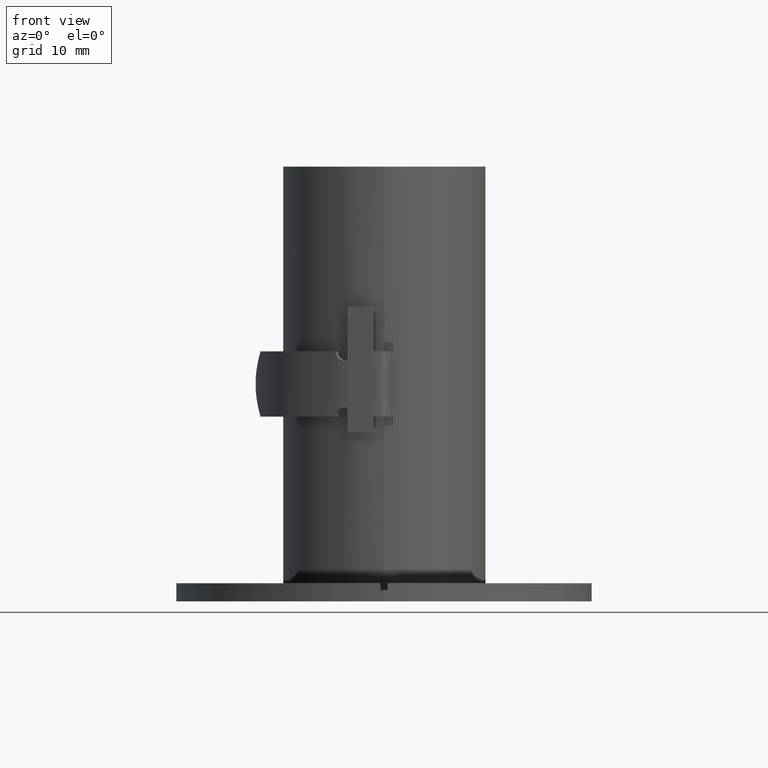
[diagram: clean part render]
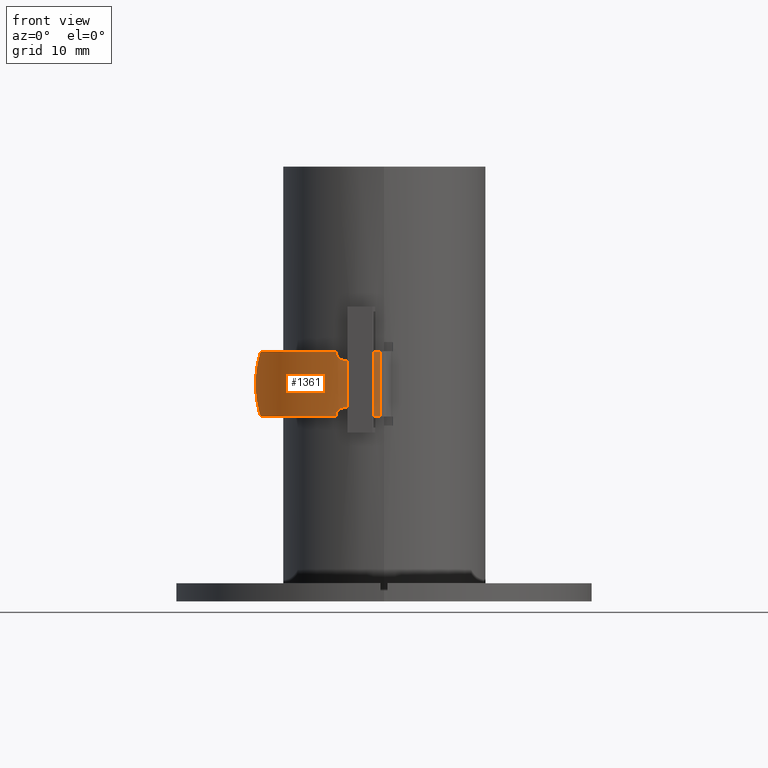
[diagram: same view with one face highlighted and labeled with its STEP entity id]
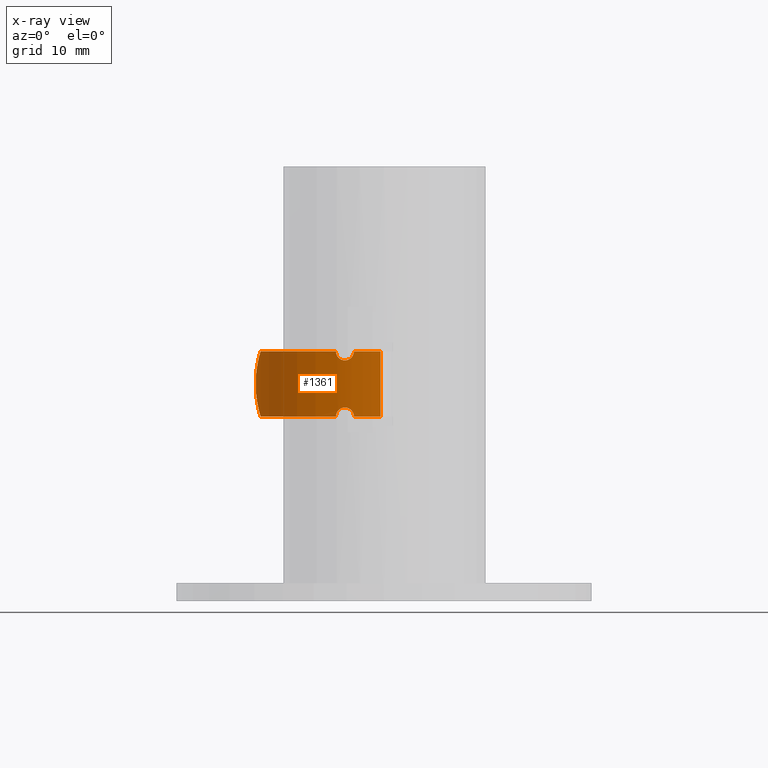
[diagram: x-ray of the same camera — body ghosted, the highlighted face saturated]
A machine part, front view. The second image highlights one B-rep face of the part: STEP entity #1361.
The next image is the same camera in x-ray: the body ghosted, the highlighted face saturated — about 0% of this face is hidden behind the body in this view.
In plain terms, the highlighted cylindrical surface (partial cylindrical patch) has radius 16.7 mm, axis along (-0, -0, -1).
Its self-contained STEP definition (entity closure, byte-faithful):
#1183=CARTESIAN_POINT('',(-17.041782629864549,-3.252078268301863,25.500000000000064));
#1184=VERTEX_POINT('',#1183);
#1185=CARTESIAN_POINT('',(-17.692212388384888,0.206895096313986,29.000000000000075));
#1186=VERTEX_POINT('',#1185);
#1187=CARTESIAN_POINT('',(-1.046021881535038,1.546425465384389,29.000000000000004));
#1188=DIRECTION('',(-0.056718024405692,0.704828394509981,-0.707106781186546));
#1189=DIRECTION('',(0.056718024405691,-0.704828394509978,-0.707106781186549));
#1190=AXIS2_PLACEMENT_3D('',#1187,#1188,#1189);
#1191=ELLIPSE('',#1190,23.61736649163073,16.699999999999999);
#1192=EDGE_CURVE('',#1184,#1186,#1191,.T.);
#1226=CARTESIAN_POINT('',(-17.692212388384888,0.206895096313986,31.000000000000011));
#1227=VERTEX_POINT('',#1226);
#1228=CARTESIAN_POINT('',(-17.692212388384888,0.206895096313986,31.000000000000007));
#1229=DIRECTION('',(0.0,0.0,-1.0));
#1230=VECTOR('',#1229,1.999999999999936);
#1231=LINE('',#1228,#1230);
#1232=EDGE_CURVE('',#1227,#1186,#1231,.T.);
#1251=CARTESIAN_POINT('',(-1.046021881535037,1.546425465384389,30.0));
#1252=DIRECTION('',(-1.463523E-016,-3.878800E-018,-1.0));
#1253=DIRECTION('',(0.034899496702501,-0.999390827019096,0.0));
#1254=AXIS2_PLACEMENT_3D('',#1251,#1252,#1253);
#1255=CYLINDRICAL_SURFACE('',#1254,16.700000000000003);
#1256=ORIENTED_EDGE('',*,*,#1192,.F.);
#1257=CARTESIAN_POINT('',(-6.627160470513724,-14.193361447106296,25.5));
#1258=VERTEX_POINT('',#1257);
#1259=CARTESIAN_POINT('',(-1.046021881535038,1.546425465384389,25.5));
#1260=DIRECTION('',(0.0,0.0,1.0));
#1261=DIRECTION('',(0.034899496702501,-0.999390827019096,0.0));
#1262=AXIS2_PLACEMENT_3D('',#1259,#1260,#1261);
#1263=CIRCLE('',#1262,16.699999999999999);
#1264=EDGE_CURVE('',#1184,#1258,#1263,.T.);
#1265=ORIENTED_EDGE('',*,*,#1264,.T.);
#1266=CARTESIAN_POINT('',(-4.158254928718286,-14.861012038992111,25.500000000000021));
#1267=VERTEX_POINT('',#1266);
#1268=CARTESIAN_POINT('',(-6.627160470513723,-14.193361447106296,25.5));
#1269=CARTESIAN_POINT('',(-6.627223987151773,-14.19333892487257,25.626558958916171));
#1270=CARTESIAN_POINT('',(-6.608323499118072,-14.200157380693369,25.781332313102649));
#1271=CARTESIAN_POINT('',(-6.495509966792144,-14.239523357339971,26.087673904773499));
#1272=CARTESIAN_POINT('',(-6.418211647218782,-14.266235998520356,26.218714352031341));
#1273=CARTESIAN_POINT('',(-6.218542435653363,-14.332695885026947,26.449170106782724));
#1274=CARTESIAN_POINT('',(-6.09650375927441,-14.372208981803251,26.545168617400293));
#1275=CARTESIAN_POINT('',(-5.818027493977508,-14.45795344244878,26.689045373663745));
#1276=CARTESIAN_POINT('',(-5.662734385387749,-14.503602379211191,26.733258482408662));
#1277=CARTESIAN_POINT('',(-5.339524318689019,-14.593111565889917,26.759235778289142));
#1278=CARTESIAN_POINT('',(-5.174118986282672,-14.636128862813978,26.73919003419855));
#1279=CARTESIAN_POINT('',(-4.859424828720577,-14.713162196859233,26.634691383115268));
#1280=CARTESIAN_POINT('',(-4.712901186687001,-14.746540079965744,26.551165978284086));
#1281=CARTESIAN_POINT('',(-4.463384414208648,-14.800669175101074,26.332953777702581));
#1282=CARTESIAN_POINT('',(-4.361830757260259,-14.821256323748525,26.201793153986781));
#1283=CARTESIAN_POINT('',(-4.246786739250357,-14.84402627233295,25.970193806893871));
#1284=CARTESIAN_POINT('',(-4.21464253727959,-14.850230953800024,25.881835934943005));
#1285=CARTESIAN_POINT('',(-4.169764573149178,-14.858841299642013,25.695188745380801));
#1286=CARTESIAN_POINT('',(-4.158203983048356,-14.861021702585068,25.597380221548466));
#1287=CARTESIAN_POINT('',(-4.158254928718285,-14.86101203899211,25.5));
#1288=B_SPLINE_CURVE_WITH_KNOTS('',3,(#1268,#1269,#1270,#1271,#1272,#1273,#1274,#1275,#1276,#1277,#1278,#1279,#1280,#1281,#1282,#1283,#1284,#1285,#1286,#1287),.UNSPECIFIED.,.F.,.U.,(4,2,2,2,2,2,2,2,2,4),(0.0,0.037967693057656,0.071104366483394,0.105426614461577,0.141313394674377,0.178098656478898,0.214871789523409,0.250687038128267,0.271021925897013,0.292302375595484),.UNSPECIFIED.);
#1289=EDGE_CURVE('',#1258,#1267,#1288,.T.);
#1290=ORIENTED_EDGE('',*,*,#1289,.T.);
#1291=CARTESIAN_POINT('',(-0.463200286603279,-15.14340134583451,25.5));
#1292=VERTEX_POINT('',#1291);
#1293=CARTESIAN_POINT('',(-1.046021881535038,1.546425465384389,25.5));
#1294=DIRECTION('',(0.0,0.0,1.0));
#1295=DIRECTION('',(0.034899496702501,-0.999390827019096,0.0));
#1296=AXIS2_PLACEMENT_3D('',#1293,#1294,#1295);
#1297=CIRCLE('',#1296,16.699999999999999);
#1298=EDGE_CURVE('',#1267,#1292,#1297,.T.);
#1299=ORIENTED_EDGE('',*,*,#1298,.T.);
#1300=CARTESIAN_POINT('',(-0.463200286603277,-15.14340134583451,34.5));
#1301=VERTEX_POINT('',#1300);
#1302=CARTESIAN_POINT('',(-0.463200286603277,-15.143401345834519,34.5));
#1303=DIRECTION('',(0.0,0.0,-1.0));
#1304=VECTOR('',#1303,9.000000000000004);
#1305=LINE('',#1302,#1304);
#1306=EDGE_CURVE('',#1301,#1292,#1305,.T.);
#1307=ORIENTED_EDGE('',*,*,#1306,.F.);
#1308=CARTESIAN_POINT('',(-4.158254928718284,-14.861012038992111,34.5));
#1309=VERTEX_POINT('',#1308);
#1310=CARTESIAN_POINT('',(-1.046021881535037,1.546425465384389,34.5));
#1311=DIRECTION('',(0.0,0.0,-1.0));
#1312=DIRECTION('',(0.034899496702501,-0.999390827019096,0.0));
#1313=AXIS2_PLACEMENT_3D('',#1310,#1311,#1312);
#1314=CIRCLE('',#1313,16.699999999999999);
#1315=EDGE_CURVE('',#1301,#1309,#1314,.T.);
#1316=ORIENTED_EDGE('',*,*,#1315,.T.);
#1317=CARTESIAN_POINT('',(-6.627160470513727,-14.193361447106295,34.5));
#1318=VERTEX_POINT('',#1317);
#1319=CARTESIAN_POINT('',(-4.158254928718282,-14.861012038992108,34.500000000000014));
#1320=CARTESIAN_POINT('',(-4.158188717830234,-14.861024598157048,34.373441041084149));
#1321=CARTESIAN_POINT('',(-4.177949677748413,-14.857388081857097,34.218667686897447));
#1322=CARTESIAN_POINT('',(-4.29522782644657,-14.834531812887946,33.912326095226248));
#1323=CARTESIAN_POINT('',(-4.375454002954834,-14.81864609570062,33.78128564796851));
#1324=CARTESIAN_POINT('',(-4.58140526046484,-14.775416590825216,33.550829893216928));
#1325=CARTESIAN_POINT('',(-4.706725395119197,-14.748038000658159,33.45483138259921));
#1326=CARTESIAN_POINT('',(-4.990462256802613,-14.681746702689145,33.31095462633651));
#1327=CARTESIAN_POINT('',(-5.147596947967529,-14.64290775528726,33.266741517591633));
#1328=CARTESIAN_POINT('',(-5.471868178888642,-14.557322648453066,33.240764221710762));
#1329=CARTESIAN_POINT('',(-5.636410564477923,-14.511114259954212,33.260809965801172));
#1330=CARTESIAN_POINT('',(-5.947038810929736,-14.41904559066576,33.36530861688415));
#1331=CARTESIAN_POINT('',(-6.090414734687447,-14.374027758176275,33.448834021715285));
#1332=CARTESIAN_POINT('',(-6.333205163943797,-14.295025314229427,33.667046222295909));
#1333=CARTESIAN_POINT('',(-6.431293696941207,-14.261624481552245,33.798206846011844));
#1334=CARTESIAN_POINT('',(-6.542134086078048,-14.223309931124334,34.02980619310479));
#1335=CARTESIAN_POINT('',(-6.573024422377571,-14.21246857900568,34.118164065055907));
#1336=CARTESIAN_POINT('',(-6.616125455320708,-14.197287318212521,34.304811254618663));
#1337=CARTESIAN_POINT('',(-6.627209343105108,-14.193344117474879,34.402619778451282));
#1338=CARTESIAN_POINT('',(-6.627160470513727,-14.193361447106291,34.500000000000014));
#1339=B_SPLINE_CURVE_WITH_KNOTS('',3,(#1319,#1320,#1321,#1322,#1323,#1324,#1325,#1326,#1327,#1328,#1329,#1330,#1331,#1332,#1333,#1334,#1335,#1336,#1337,#1338),.UNSPECIFIED.,.F.,.U.,(4,2,2,2,2,2,2,2,2,4),(0.0,0.037967693057563,0.071104366483098,0.10542661446113,0.141313394673677,0.178098656478077,0.214871789522634,0.25068703812757,0.271021925896413,0.292302375595005),.UNSPECIFIED.);
#1340=EDGE_CURVE('',#1309,#1318,#1339,.T.);
#1341=ORIENTED_EDGE('',*,*,#1340,.T.);
#1342=CARTESIAN_POINT('',(-17.041782629864549,-3.252078268301873,34.500000000000178));
#1343=VERTEX_POINT('',#1342);
#1344=CARTESIAN_POINT('',(-1.046021881535037,1.546425465384389,34.5));
#1345=DIRECTION('',(0.0,0.0,-1.0));
#1346=DIRECTION('',(0.034899496702501,-0.999390827019096,0.0));
#1347=AXIS2_PLACEMENT_3D('',#1344,#1345,#1346);
#1348=CIRCLE('',#1347,16.699999999999999);
#1349=EDGE_CURVE('',#1318,#1343,#1348,.T.);
#1350=ORIENTED_EDGE('',*,*,#1349,.T.);
#1351=CARTESIAN_POINT('',(-1.046021881535037,1.546425465384389,30.999999999999801));
#1352=DIRECTION('',(-0.056718024405681,0.704828394509997,0.70710678118653));
#1353=DIRECTION('',(0.056718024405679,-0.704828394509963,0.707106781186565));
#1354=AXIS2_PLACEMENT_3D('',#1351,#1352,#1353);
#1355=ELLIPSE('',#1354,23.617366491631259,16.699999999999999);
#1356=EDGE_CURVE('',#1227,#1343,#1355,.T.);
#1357=ORIENTED_EDGE('',*,*,#1356,.F.);
#1358=ORIENTED_EDGE('',*,*,#1232,.T.);
#1359=EDGE_LOOP('',(#1256,#1265,#1290,#1299,#1307,#1316,#1341,#1350,#1357,#1358));
#1360=FACE_OUTER_BOUND('',#1359,.T.);
#1361=ADVANCED_FACE('',(#1360),#1255,.T.);